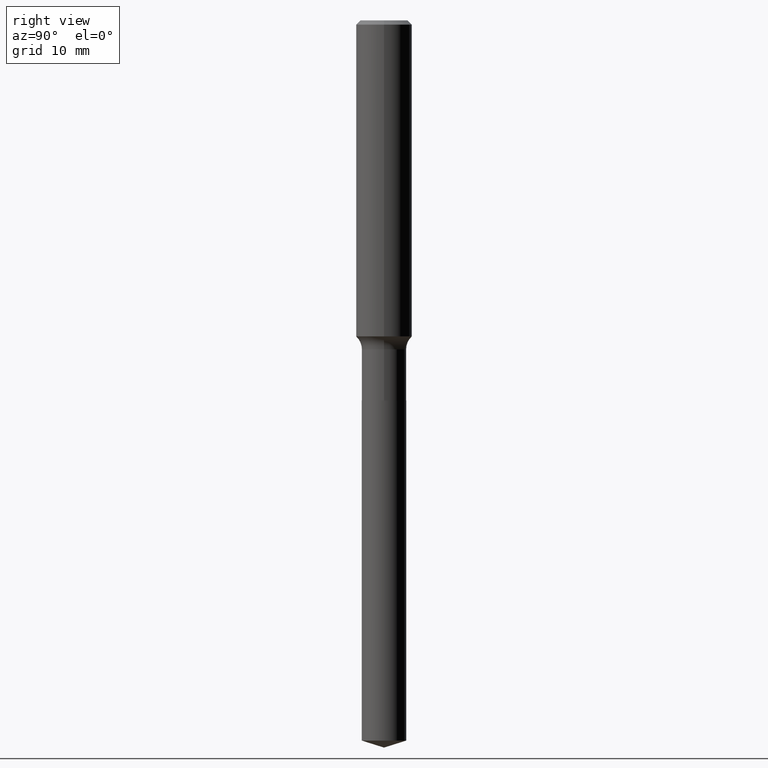
[diagram: clean part render]
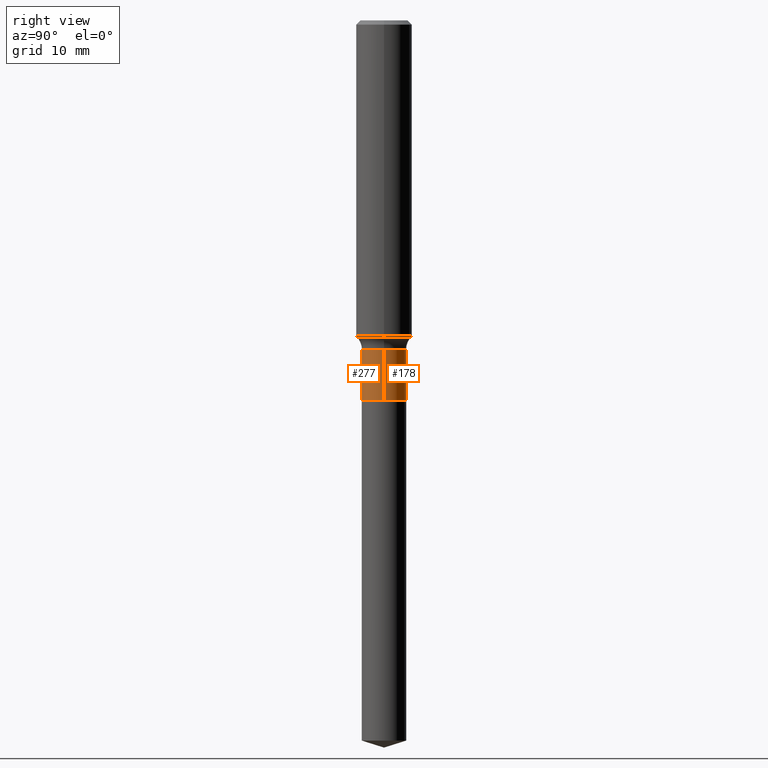
[diagram: same view with one multi-face feature highlighted, each face labeled with its STEP entity id]
A machine part, right view. The highlighted faces form ONE feature: a constant-radius fillet chain: 2 tangent blend faces with common blend radius 2.5273 mm. The faces share edges in the B-rep.
Their STEP definitions:
[1] entity #277 (Cylinder):
#4 = EDGE_CURVE ( 'NONE', #147, #464, #203, .T. ) ;
#6 = DIRECTION ( 'NONE',  ( -2.445468806185136597E-29, 3.491481338843145583E-15, 1.000000000000000000 ) ) ;
#20 = ORIENTED_EDGE ( 'NONE', *, *, #45, .T. ) ;
#22 = CARTESIAN_POINT ( 'NONE',  ( 0.000000000000000000, 0.000000000000000000, 0.000000000000000000 ) ) ;
#42 = AXIS2_PLACEMENT_3D ( 'NONE', #163, #332, #55 ) ;
#45 = EDGE_CURVE ( 'NONE', #98, #464, #49, .T. ) ;
#49 = LINE ( 'NONE', #77, #308 ) ;
#55 = DIRECTION ( 'NONE',  ( 1.000000000000000000, -6.982962677686268288E-15, 0.000000000000000000 ) ) ;
#60 = FACE_OUTER_BOUND ( 'NONE', #330, .T. ) ;
#77 = CARTESIAN_POINT ( 'NONE',  ( 0.09949999999999999123, -6.948047864297834667E-16, 4.851795891916955189E-30 ) ) ;
#80 = VECTOR ( 'NONE', #244, 39.37007874015748143 ) ;
#98 = VERTEX_POINT ( 'NONE', #369 ) ;
#114 = ORIENTED_EDGE ( 'NONE', *, *, #123, .T. ) ;
#123 = EDGE_CURVE ( 'NONE', #171, #98, #377, .T. ) ;
#147 = VERTEX_POINT ( 'NONE', #430 ) ;
#163 = CARTESIAN_POINT ( 'NONE',  ( 4.153628767305455155E-29, -5.930281054025084281E-15, -1.698500000000000121 ) ) ;
#171 = VERTEX_POINT ( 'NONE', #294 ) ;
#174 = DIRECTION ( 'NONE',  ( -2.445468806185136597E-29, 3.491481338843145583E-15, 1.000000000000000000 ) ) ;
#195 = DIRECTION ( 'NONE',  ( 1.000000000000000000, -6.982962677686261977E-15, 0.000000000000000000 ) ) ;
#203 = CIRCLE ( 'NONE', #488, 0.09949999999999997735 ) ;
#210 = AXIS2_PLACEMENT_3D ( 'NONE', #22, #174, #328 ) ;
#221 = EDGE_CURVE ( 'NONE', #171, #147, #232, .T. ) ;
#232 = LINE ( 'NONE', #378, #80 ) ;
#240 = DIRECTION ( 'NONE',  ( -2.445468806185136877E-29, 3.491481338843145188E-15, 1.000000000000000000 ) ) ;
#244 = DIRECTION ( 'NONE',  ( -2.445468806185136877E-29, 3.491481338843145188E-15, 1.000000000000000000 ) ) ;
#255 = CYLINDRICAL_SURFACE ( 'NONE', #210, 0.09949999999999999123 ) ;
#265 = ORIENTED_EDGE ( 'NONE', *, *, #4, .F. ) ;
#277 = ADVANCED_FACE ( 'NONE', ( #60 ), #255, .T. ) ;
#294 = CARTESIAN_POINT ( 'NONE',  ( -0.09950000000000000511, -4.824563863047897171E-15, -1.698500000000000121 ) ) ;
#308 = VECTOR ( 'NONE', #240, 39.37007874015748143 ) ;
#320 = CARTESIAN_POINT ( 'NONE',  ( 3.595083691972769604E-29, -5.132826716233308319E-15, -1.470099999999999962 ) ) ;
#328 = DIRECTION ( 'NONE',  ( 1.000000000000000000, -6.982962677686266711E-15, 4.876176775795935232E-29 ) ) ;
#330 = EDGE_LOOP ( 'NONE', ( #414, #114, #20, #265 ) ) ;
#332 = DIRECTION ( 'NONE',  ( -2.445468806185136597E-29, 3.491481338843145583E-15, 1.000000000000000000 ) ) ;
#369 = CARTESIAN_POINT ( 'NONE',  ( 0.09950000000000000511, -6.625085840454867945E-15, -1.698500000000000121 ) ) ;
#377 = CIRCLE ( 'NONE', #42, 0.09950000000000000511 ) ;
#378 = CARTESIAN_POINT ( 'NONE',  ( -0.09949999999999999123, 7.069900220812996226E-16, -4.894340414803631031E-30 ) ) ;
#401 = CARTESIAN_POINT ( 'NONE',  ( 0.09949999999999997735, -5.827631502663091194E-15, -1.470099999999999962 ) ) ;
#414 = ORIENTED_EDGE ( 'NONE', *, *, #221, .F. ) ;
#430 = CARTESIAN_POINT ( 'NONE',  ( -0.09949999999999997735, -4.824563863047897171E-15, -1.470099999999999962 ) ) ;
#464 = VERTEX_POINT ( 'NONE', #401 ) ;
#488 = AXIS2_PLACEMENT_3D ( 'NONE', #320, #6, #195 ) ;
[2] entity #178 (Cylinder):
#18 = DIRECTION ( 'NONE',  ( 1.000000000000000000, -6.982962677686268288E-15, 0.000000000000000000 ) ) ;
#45 = EDGE_CURVE ( 'NONE', #98, #464, #49, .T. ) ;
#49 = LINE ( 'NONE', #77, #308 ) ;
#52 = DIRECTION ( 'NONE',  ( -2.445468806185136597E-29, 3.491481338843145583E-15, 1.000000000000000000 ) ) ;
#63 = CYLINDRICAL_SURFACE ( 'NONE', #457, 0.09949999999999999123 ) ;
#77 = CARTESIAN_POINT ( 'NONE',  ( 0.09949999999999999123, -6.948047864297834667E-16, 4.851795891916955189E-30 ) ) ;
#80 = VECTOR ( 'NONE', #244, 39.37007874015748143 ) ;
#81 = EDGE_CURVE ( 'NONE', #464, #147, #304, .T. ) ;
#98 = VERTEX_POINT ( 'NONE', #369 ) ;
#128 = ORIENTED_EDGE ( 'NONE', *, *, #221, .T. ) ;
#147 = VERTEX_POINT ( 'NONE', #430 ) ;
#152 = ORIENTED_EDGE ( 'NONE', *, *, #81, .F. ) ;
#171 = VERTEX_POINT ( 'NONE', #294 ) ;
#178 = ADVANCED_FACE ( 'NONE', ( #427 ), #63, .T. ) ;
#185 = CIRCLE ( 'NONE', #411, 0.09950000000000000511 ) ;
#208 = DIRECTION ( 'NONE',  ( -2.445468806185136597E-29, 3.491481338843145583E-15, 1.000000000000000000 ) ) ;
#214 = DIRECTION ( 'NONE',  ( 1.000000000000000000, -6.982962677686261977E-15, 0.000000000000000000 ) ) ;
#221 = EDGE_CURVE ( 'NONE', #171, #147, #232, .T. ) ;
#232 = LINE ( 'NONE', #378, #80 ) ;
#240 = DIRECTION ( 'NONE',  ( -2.445468806185136877E-29, 3.491481338843145188E-15, 1.000000000000000000 ) ) ;
#243 = AXIS2_PLACEMENT_3D ( 'NONE', #471, #208, #214 ) ;
#244 = DIRECTION ( 'NONE',  ( -2.445468806185136877E-29, 3.491481338843145188E-15, 1.000000000000000000 ) ) ;
#294 = CARTESIAN_POINT ( 'NONE',  ( -0.09950000000000000511, -4.824563863047897171E-15, -1.698500000000000121 ) ) ;
#296 = CARTESIAN_POINT ( 'NONE',  ( 4.153628767305455155E-29, -5.930281054025084281E-15, -1.698500000000000121 ) ) ;
#301 = ORIENTED_EDGE ( 'NONE', *, *, #333, .T. ) ;
#304 = CIRCLE ( 'NONE', #243, 0.09949999999999997735 ) ;
#308 = VECTOR ( 'NONE', #240, 39.37007874015748143 ) ;
#333 = EDGE_CURVE ( 'NONE', #98, #171, #185, .T. ) ;
#360 = DIRECTION ( 'NONE',  ( 1.000000000000000000, -6.982962677686266711E-15, 4.876176775795935232E-29 ) ) ;
#362 = ORIENTED_EDGE ( 'NONE', *, *, #45, .F. ) ;
#369 = CARTESIAN_POINT ( 'NONE',  ( 0.09950000000000000511, -6.625085840454867945E-15, -1.698500000000000121 ) ) ;
#378 = CARTESIAN_POINT ( 'NONE',  ( -0.09949999999999999123, 7.069900220812996226E-16, -4.894340414803631031E-30 ) ) ;
#392 = CARTESIAN_POINT ( 'NONE',  ( 0.000000000000000000, 0.000000000000000000, 0.000000000000000000 ) ) ;
#397 = DIRECTION ( 'NONE',  ( -2.445468806185136597E-29, 3.491481338843145583E-15, 1.000000000000000000 ) ) ;
#401 = CARTESIAN_POINT ( 'NONE',  ( 0.09949999999999997735, -5.827631502663091194E-15, -1.470099999999999962 ) ) ;
#411 = AXIS2_PLACEMENT_3D ( 'NONE', #296, #397, #18 ) ;
#427 = FACE_OUTER_BOUND ( 'NONE', #448, .T. ) ;
#430 = CARTESIAN_POINT ( 'NONE',  ( -0.09949999999999997735, -4.824563863047897171E-15, -1.470099999999999962 ) ) ;
#448 = EDGE_LOOP ( 'NONE', ( #301, #128, #152, #362 ) ) ;
#457 = AXIS2_PLACEMENT_3D ( 'NONE', #392, #52, #360 ) ;
#464 = VERTEX_POINT ( 'NONE', #401 ) ;
#471 = CARTESIAN_POINT ( 'NONE',  ( 3.595083691972769604E-29, -5.132826716233308319E-15, -1.470099999999999962 ) ) ;